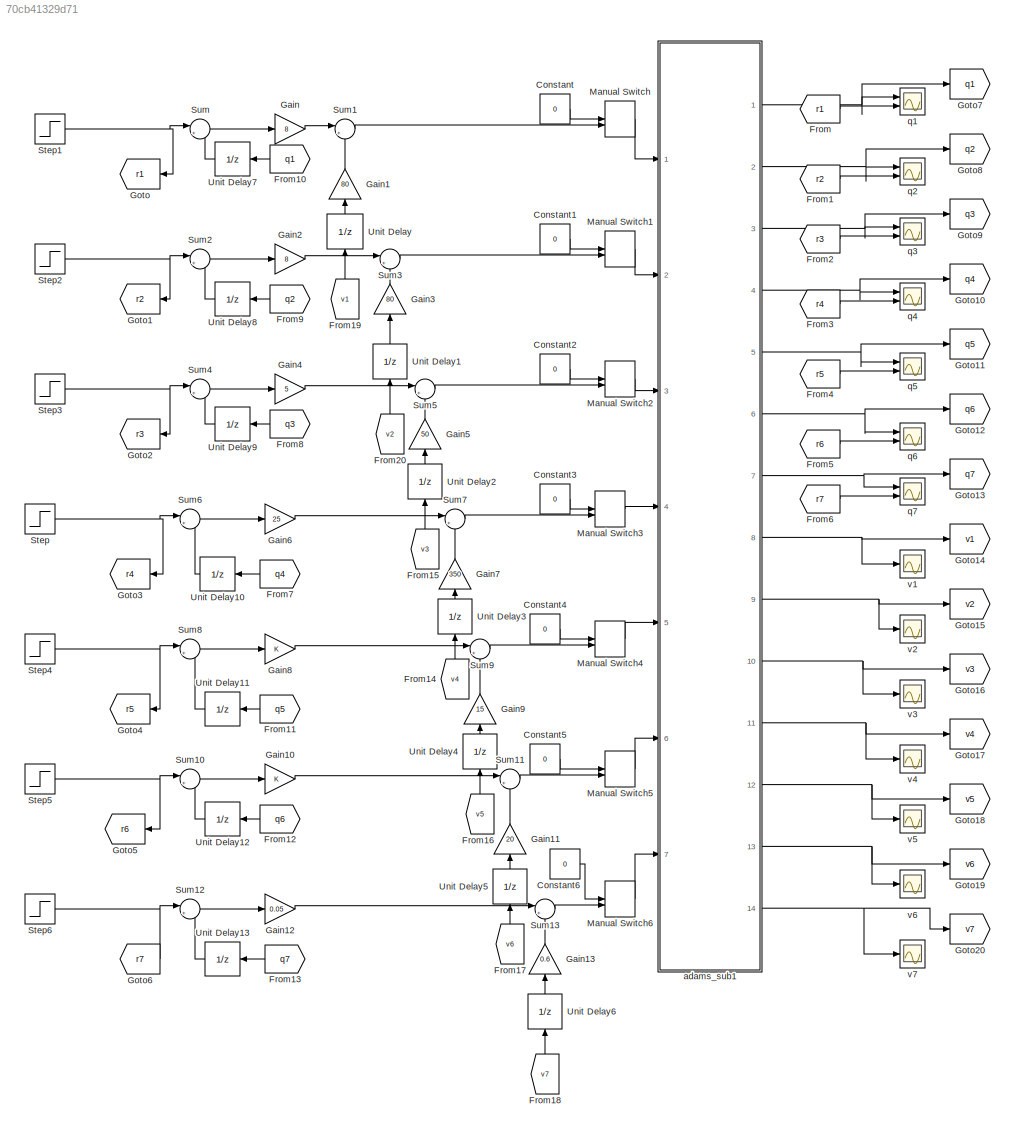
MODEL slx_70cb41329d71
KIND model
CONFIG AbsTol = 1e-6
CONFIG EnableMultiTasking = off
CONFIG FixedStep = auto
CONFIG MaxStep = auto
CONFIG MinStep = auto
CONFIG RelTol = 1e-3
CONFIG SampleTimeConstraint = Unconstrained
CONFIG Solver = ode45
CONFIG SolverName = ode45
CONFIG StartTime = 0.0
CONFIG StopTime = 5.0
BLOCK [Constant] Constant
  Value = 0
BLOCK [Constant] Constant1
  Value = 0
BLOCK [Constant] Constant2
  Value = 0
BLOCK [Constant] Constant3
  Value = 0
BLOCK [Constant] Constant4
  Value = 0
BLOCK [Constant] Constant5
  Value = 0
BLOCK [Constant] Constant6
  Value = 0
BLOCK [From] From
  GotoTag = r1
BLOCK [From] From1
  GotoTag = r2
BLOCK [From] From10
  GotoTag = q1
BLOCK [From] From11
  GotoTag = q5
BLOCK [From] From12
  GotoTag = q6
BLOCK [From] From13
  GotoTag = q7
BLOCK [From] From14
  GotoTag = v4
BLOCK [From] From15
  GotoTag = v3
BLOCK [From] From16
  GotoTag = v5
BLOCK [From] From17
  GotoTag = v6
BLOCK [From] From18
  GotoTag = v7
BLOCK [From] From19
  GotoTag = v1
BLOCK [From] From2
  GotoTag = r3
BLOCK [From] From20
  GotoTag = v2
BLOCK [From] From3
  GotoTag = r4
BLOCK [From] From4
  GotoTag = r5
BLOCK [From] From5
  GotoTag = r6
BLOCK [From] From6
  GotoTag = r7
BLOCK [From] From7
  GotoTag = q4
BLOCK [From] From8
  GotoTag = q3
BLOCK [From] From9
  GotoTag = q2
BLOCK [Gain] Gain
  Gain = 8
  OutDataTypeStr = Inherit: Inherit via internal rule
  ParamDataTypeStr = Inherit: Inherit via internal rule
  SaturateOnIntegerOverflow = off
BLOCK [Gain] Gain1
  Gain = 80
  OutDataTypeStr = Inherit: Inherit via internal rule
  ParamDataTypeStr = Inherit: Inherit via internal rule
  SaturateOnIntegerOverflow = off
BLOCK [Gain] Gain10
  OutDataTypeStr = Inherit: Inherit via internal rule
  ParamDataTypeStr = Inherit: Inherit via internal rule
  SaturateOnIntegerOverflow = off
BLOCK [Gain] Gain11
  Gain = 20
  OutDataTypeStr = Inherit: Inherit via internal rule
  ParamDataTypeStr = Inherit: Inherit via internal rule
  SaturateOnIntegerOverflow = off
BLOCK [Gain] Gain12
  Gain = 0.05
  OutDataTypeStr = Inherit: Inherit via internal rule
  ParamDataTypeStr = Inherit: Inherit via internal rule
  SaturateOnIntegerOverflow = off
BLOCK [Gain] Gain13
  Gain = 0.6
  OutDataTypeStr = Inherit: Inherit via internal rule
  ParamDataTypeStr = Inherit: Inherit via internal rule
  SaturateOnIntegerOverflow = off
BLOCK [Gain] Gain2
  Gain = 8
  OutDataTypeStr = Inherit: Inherit via internal rule
  ParamDataTypeStr = Inherit: Inherit via internal rule
  SaturateOnIntegerOverflow = off
BLOCK [Gain] Gain3
  Gain = 80
  OutDataTypeStr = Inherit: Inherit via internal rule
  ParamDataTypeStr = Inherit: Inherit via internal rule
  SaturateOnIntegerOverflow = off
BLOCK [Gain] Gain4
  Gain = 5
  OutDataTypeStr = Inherit: Inherit via internal rule
  ParamDataTypeStr = Inherit: Inherit via internal rule
  SaturateOnIntegerOverflow = off
BLOCK [Gain] Gain5
  Gain = 50
  OutDataTypeStr = Inherit: Inherit via internal rule
  ParamDataTypeStr = Inherit: Inherit via internal rule
  SaturateOnIntegerOverflow = off
BLOCK [Gain] Gain6
  Gain = 25
  OutDataTypeStr = Inherit: Inherit via internal rule
  ParamDataTypeStr = Inherit: Inherit via internal rule
  SaturateOnIntegerOverflow = off
BLOCK [Gain] Gain7
  Gain = 350
  OutDataTypeStr = Inherit: Inherit via internal rule
  ParamDataTypeStr = Inherit: Inherit via internal rule
  SaturateOnIntegerOverflow = off
BLOCK [Gain] Gain8
  OutDataTypeStr = Inherit: Inherit via internal rule
  ParamDataTypeStr = Inherit: Inherit via internal rule
  SaturateOnIntegerOverflow = off
BLOCK [Gain] Gain9
  Gain = 15
  OutDataTypeStr = Inherit: Inherit via internal rule
  ParamDataTypeStr = Inherit: Inherit via internal rule
  SaturateOnIntegerOverflow = off
BLOCK [Goto] Goto
  GotoTag = r1
BLOCK [Goto] Goto1
  GotoTag = r2
BLOCK [Goto] Goto10
  GotoTag = q4
BLOCK [Goto] Goto11
  GotoTag = q5
BLOCK [Goto] Goto12
  GotoTag = q6
BLOCK [Goto] Goto13
  GotoTag = q7
BLOCK [Goto] Goto14
  GotoTag = v1
BLOCK [Goto] Goto15
  GotoTag = v2
BLOCK [Goto] Goto16
  GotoTag = v3
BLOCK [Goto] Goto17
  GotoTag = v4
BLOCK [Goto] Goto18
  GotoTag = v5
BLOCK [Goto] Goto19
  GotoTag = v6
BLOCK [Goto] Goto2
  GotoTag = r3
BLOCK [Goto] Goto20
  GotoTag = v7
BLOCK [Goto] Goto3
  GotoTag = r4
BLOCK [Goto] Goto4
  GotoTag = r5
BLOCK [Goto] Goto5
  GotoTag = r6
BLOCK [Goto] Goto6
  GotoTag = r7
BLOCK [Goto] Goto7
  GotoTag = q1
BLOCK [Goto] Goto8
  GotoTag = q2
BLOCK [Goto] Goto9
  GotoTag = q3
BLOCK [ManualSwitch] Manual Switch
  CurrentSetting = 0
BLOCK [ManualSwitch] Manual Switch1
  CurrentSetting = 0
BLOCK [ManualSwitch] Manual Switch2
  CurrentSetting = 0
BLOCK [ManualSwitch] Manual Switch3
  CurrentSetting = 0
BLOCK [ManualSwitch] Manual Switch4
  CurrentSetting = 0
BLOCK [ManualSwitch] Manual Switch5
  CurrentSetting = 0
BLOCK [ManualSwitch] Manual Switch6
  CurrentSetting = 0
BLOCK [Step] Step
  After = 0.1
  SampleTime = 0
  Time = 0.01
BLOCK [Step] Step1
  After = 0.1
  SampleTime = 0
  Time = 0.01
BLOCK [Step] Step2
  After = 0.1
  SampleTime = 0
  Time = 0.01
BLOCK [Step] Step3
  After = -0.1
  SampleTime = 0
  Time = 0.01
BLOCK [Step] Step4
  After = 0.1
  SampleTime = 0
  Time = 0.01
BLOCK [Step] Step5
  After = -0.1
  SampleTime = 0
  Time = 0.01
BLOCK [Step] Step6
  After = -0.1
  SampleTime = 0
  Time = 0.01
BLOCK [Sum] Sum
  IconShape = round
  InputSameDT = off
  Inputs = |+-
  OutDataTypeStr = Inherit: Inherit via internal rule
  Ports = [2, 1]
  SaturateOnIntegerOverflow = off
BLOCK [Sum] Sum1
  IconShape = round
  InputSameDT = off
  Inputs = |+-
  OutDataTypeStr = Inherit: Inherit via internal rule
  Ports = [2, 1]
  SaturateOnIntegerOverflow = off
BLOCK [Sum] Sum10
  IconShape = round
  InputSameDT = off
  Inputs = |+-
  OutDataTypeStr = Inherit: Inherit via internal rule
  Ports = [2, 1]
  SaturateOnIntegerOverflow = off
BLOCK [Sum] Sum11
  IconShape = round
  InputSameDT = off
  Inputs = |+-
  OutDataTypeStr = Inherit: Inherit via internal rule
  Ports = [2, 1]
  SaturateOnIntegerOverflow = off
BLOCK [Sum] Sum12
  IconShape = round
  InputSameDT = off
  Inputs = |+-
  OutDataTypeStr = Inherit: Inherit via internal rule
  Ports = [2, 1]
  SaturateOnIntegerOverflow = off
BLOCK [Sum] Sum13
  IconShape = round
  InputSameDT = off
  Inputs = |+-
  OutDataTypeStr = Inherit: Inherit via internal rule
  Ports = [2, 1]
  SaturateOnIntegerOverflow = off
BLOCK [Sum] Sum2
  IconShape = round
  InputSameDT = off
  Inputs = |+-
  OutDataTypeStr = Inherit: Inherit via internal rule
  Ports = [2, 1]
  SaturateOnIntegerOverflow = off
BLOCK [Sum] Sum3
  IconShape = round
  InputSameDT = off
  Inputs = |+-
  OutDataTypeStr = Inherit: Inherit via internal rule
  Ports = [2, 1]
  SaturateOnIntegerOverflow = off
BLOCK [Sum] Sum4
  IconShape = round
  InputSameDT = off
  Inputs = |+-
  OutDataTypeStr = Inherit: Inherit via internal rule
  Ports = [2, 1]
  SaturateOnIntegerOverflow = off
BLOCK [Sum] Sum5
  IconShape = round
  InputSameDT = off
  Inputs = |+-
  OutDataTypeStr = Inherit: Inherit via internal rule
  Ports = [2, 1]
  SaturateOnIntegerOverflow = off
BLOCK [Sum] Sum6
  IconShape = round
  InputSameDT = off
  Inputs = |+-
  OutDataTypeStr = Inherit: Inherit via internal rule
  Ports = [2, 1]
  SaturateOnIntegerOverflow = off
BLOCK [Sum] Sum7
  IconShape = round
  InputSameDT = off
  Inputs = |+-
  OutDataTypeStr = Inherit: Inherit via internal rule
  Ports = [2, 1]
  SaturateOnIntegerOverflow = off
BLOCK [Sum] Sum8
  IconShape = round
  InputSameDT = off
  Inputs = |+-
  OutDataTypeStr = Inherit: Inherit via internal rule
  Ports = [2, 1]
  SaturateOnIntegerOverflow = off
BLOCK [Sum] Sum9
  IconShape = round
  InputSameDT = off
  Inputs = |+-
  OutDataTypeStr = Inherit: Inherit via internal rule
  Ports = [2, 1]
  SaturateOnIntegerOverflow = off
BLOCK [UnitDelay] Unit Delay
  InputProcessing = Elements as channels (sample based)
  SampleTime = -1
BLOCK [UnitDelay] Unit Delay1
  InputProcessing = Elements as channels (sample based)
  SampleTime = -1
BLOCK [UnitDelay] Unit Delay10
  InputProcessing = Elements as channels (sample based)
  SampleTime = -1
BLOCK [UnitDelay] Unit Delay11
  InputProcessing = Elements as channels (sample based)
  SampleTime = -1
BLOCK [UnitDelay] Unit Delay12
  InputProcessing = Elements as channels (sample based)
  SampleTime = -1
BLOCK [UnitDelay] Unit Delay13
  InputProcessing = Elements as channels (sample based)
  SampleTime = -1
BLOCK [UnitDelay] Unit Delay2
  InputProcessing = Elements as channels (sample based)
  SampleTime = -1
BLOCK [UnitDelay] Unit Delay3
  InputProcessing = Elements as channels (sample based)
  SampleTime = -1
BLOCK [UnitDelay] Unit Delay4
  InputProcessing = Elements as channels (sample based)
  SampleTime = -1
BLOCK [UnitDelay] Unit Delay5
  InputProcessing = Elements as channels (sample based)
  SampleTime = -1
BLOCK [UnitDelay] Unit Delay6
  InputProcessing = Elements as channels (sample based)
  SampleTime = -1
BLOCK [UnitDelay] Unit Delay7
  InputProcessing = Elements as channels (sample based)
  SampleTime = -1
BLOCK [UnitDelay] Unit Delay8
  InputProcessing = Elements as channels (sample based)
  SampleTime = -1
BLOCK [UnitDelay] Unit Delay9
  InputProcessing = Elements as channels (sample based)
  SampleTime = -1
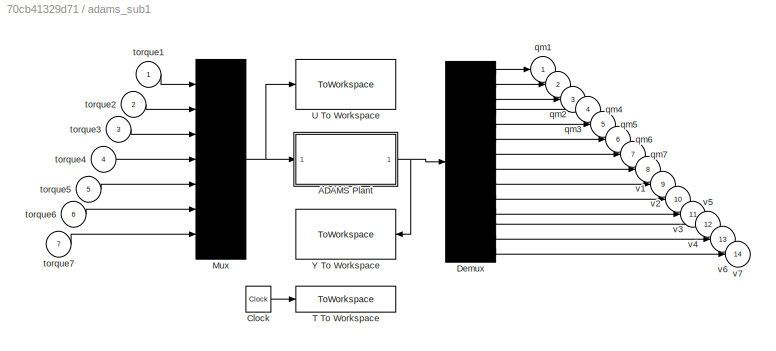
BLOCK [SubSystem] adams_sub1
  Ports = [7, 14]
  RequestExecContextInheritance = off
  ShowPortLabels = none
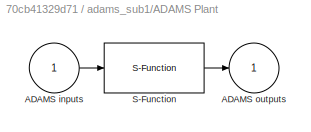
BLOCK [SubSystem] adams_sub1/ADAMS Plant
  InitFcn = clear mex
  LoadFcn = %check based on dialog box setting for when setting by popup menu                                             \nif exist('ADAMS_solver_type')                                                                                 \n  if strcmp(ADAMS_solver_type,'C++')                                                                          \n    set_param(gcb,'exetyp','C++');                                 ...<+4486ch>
  OpenFcn = open_system(gcb,'mask')                                                                                                                          \nif not(exist('set_some_params_states'))                                                                                                          \n                                                                                                            ...<+625ch>
  Ports = [1, 1]
  RequestExecContextInheritance = off
BLOCK [Inport] adams_sub1/ADAMS Plant/ADAMS inputs
  IconDisplay = Port number
BLOCK [Outport] adams_sub1/ADAMS Plant/ADAMS outputs
  IconDisplay = Port number
  InitialOutput = 0
BLOCK [S-Function] adams_sub1/ADAMS Plant/S-Function
  EnableBusSupport = off
  FunctionName = adams_plant
  Parameters = exevie,exesol,stat,outfil,nampre,o_rate,nam_in,namout,dft,modsim,modani,dt_out,inicmd,exetyp,comtyp,ada_host, workdir,pin_interp_order,pout_extrap_order,pin_extrap_order,pout_interp_order,simulink_lead_cosim
  Ports = [1, 1]
  SFcnIsStateOwnerBlock = off
  SFunctionDeploymentMode = off
  StopFcn = clear mex
BLOCK [Clock] adams_sub1/Clock
BLOCK [Demux] adams_sub1/Demux
  Outputs = 14
  Ports = [1, 14]
BLOCK [Mux] adams_sub1/Mux
  Inputs = 7
  Ports = [7, 1]
BLOCK [ToWorkspace] adams_sub1/T To Workspace
  MaxDataPoints = 100000
  Ports = [1]
  VariableName = ADAMS_tout
BLOCK [ToWorkspace] adams_sub1/U To Workspace
  MaxDataPoints = 100000
  Ports = [1]
  VariableName = ADAMS_uout
BLOCK [ToWorkspace] adams_sub1/Y To Workspace
  MaxDataPoints = 100000
  Ports = [1]
  VariableName = ADAMS_yout
BLOCK [Outport] adams_sub1/qm1
  IconDisplay = Port number
BLOCK [Outport] adams_sub1/qm2
  IconDisplay = Port number
  Port = 2
BLOCK [Outport] adams_sub1/qm3
  IconDisplay = Port number
  Port = 3
BLOCK [Outport] adams_sub1/qm4
  IconDisplay = Port number
  Port = 4
BLOCK [Outport] adams_sub1/qm5
  IconDisplay = Port number
  Port = 5
BLOCK [Outport] adams_sub1/qm6
  IconDisplay = Port number
  Port = 6
BLOCK [Outport] adams_sub1/qm7
  IconDisplay = Port number
  Port = 7
BLOCK [Inport] adams_sub1/torque1
  IconDisplay = Port number
BLOCK [Inport] adams_sub1/torque2
  IconDisplay = Port number
  Port = 2
BLOCK [Inport] adams_sub1/torque3
  IconDisplay = Port number
  Port = 3
BLOCK [Inport] adams_sub1/torque4
  IconDisplay = Port number
  Port = 4
BLOCK [Inport] adams_sub1/torque5
  IconDisplay = Port number
  Port = 5
BLOCK [Inport] adams_sub1/torque6
  IconDisplay = Port number
  Port = 6
BLOCK [Inport] adams_sub1/torque7
  IconDisplay = Port number
  Port = 7
BLOCK [Outport] adams_sub1/v1 
  IconDisplay = Port number
  Port = 8
BLOCK [Outport] adams_sub1/v2 
  IconDisplay = Port number
  Port = 9
BLOCK [Outport] adams_sub1/v3 
  IconDisplay = Port number
  Port = 10
BLOCK [Outport] adams_sub1/v4 
  IconDisplay = Port number
  Port = 11
BLOCK [Outport] adams_sub1/v5 
  IconDisplay = Port number
  Port = 12
BLOCK [Outport] adams_sub1/v6 
  IconDisplay = Port number
  Port = 13
BLOCK [Outport] adams_sub1/v7 
  IconDisplay = Port number
  Port = 14
BLOCK [Scope] q1
  Floating = off
  NumInputPorts = 2
  Ports = [2]
  ScopeSpecificationString = Simulink.scopes.TimeScopeBlockCfg('CurrentConfiguration', extmgr.ConfigurationSet(extmgr.Configuration('Core','General UI',true),extmgr.Configuration('Core','Source UI',true),extmgr.Configuration('Sources','WiredSimulink',true,'DataLoggingVariableName','ScopeData1'),extmgr.Configuration('Visuals','Time Domain',true,'SerializedDisplays',{struct('MinYLimReal','-0.0125','MaxYLimReal','0.1125','YLabel...<+1433ch>
BLOCK [Scope] q2
  Floating = off
  NumInputPorts = 2
  Ports = [2]
  ScopeSpecificationString = Simulink.scopes.TimeScopeBlockCfg('CurrentConfiguration', extmgr.ConfigurationSet(extmgr.Configuration('Core','General UI',true),extmgr.Configuration('Core','Source UI',true),extmgr.Configuration('Sources','WiredSimulink',true),extmgr.Configuration('Visuals','Time Domain',true,'SerializedDisplays',{struct('MinYLimReal','-0.01463','MaxYLimReal','0.13163','YLabelReal','','MinYLimMag','0.00000','MaxY...<+1374ch>
BLOCK [Scope] q3
  Floating = off
  NumInputPorts = 2
  Ports = [2]
  ScopeSpecificationString = Simulink.scopes.TimeScopeBlockCfg('CurrentConfiguration', extmgr.ConfigurationSet(extmgr.Configuration('Core','General UI',true),extmgr.Configuration('Core','Source UI',true),extmgr.Configuration('Sources','WiredSimulink',true,'DataLoggingVariableName','ScopeData2'),extmgr.Configuration('Visuals','Time Domain',true,'SerializedDisplays',{struct('MinYLimReal','-0.13695','MaxYLimReal','0.01522','YLab...<+1440ch>
BLOCK [Scope] q4
  Floating = off
  NumInputPorts = 2
  Ports = [2]
  ScopeSpecificationString = Simulink.scopes.TimeScopeBlockCfg('CurrentConfiguration', extmgr.ConfigurationSet(extmgr.Configuration('Core','General UI',true),extmgr.Configuration('Core','Source UI',true),extmgr.Configuration('Sources','WiredSimulink',true,'DataLoggingVariableName','ScopeData3'),extmgr.Configuration('Visuals','Time Domain',true,'SerializedDisplays',{struct('MinYLimReal','-0.01344','MaxYLimReal','0.12095','YLab...<+1436ch>
BLOCK [Scope] q5
  Floating = off
  NumInputPorts = 2
  Ports = [2]
  ScopeSpecificationString = Simulink.scopes.TimeScopeBlockCfg('CurrentConfiguration', extmgr.ConfigurationSet(extmgr.Configuration('Core','General UI',true),extmgr.Configuration('Core','Source UI',true),extmgr.Configuration('Sources','WiredSimulink',true,'DataLoggingVariableName','ScopeData4'),extmgr.Configuration('Visuals','Time Domain',true,'SerializedDisplays',{struct('MinYLimReal','-0.01658','MaxYLimReal','0.13185','YLab...<+1436ch>
BLOCK [Scope] q6
  Floating = off
  NumInputPorts = 2
  Ports = [2]
  ScopeSpecificationString = Simulink.scopes.TimeScopeBlockCfg('CurrentConfiguration', extmgr.ConfigurationSet(extmgr.Configuration('Core','General UI',true),extmgr.Configuration('Core','Source UI',true),extmgr.Configuration('Sources','WiredSimulink',true,'DataLoggingVariableName','ScopeData5'),extmgr.Configuration('Visuals','Time Domain',true,'SerializedDisplays',{struct('MinYLimReal','-0.1543','MaxYLimReal','0.01714','YLabe...<+1434ch>
BLOCK [Scope] q7
  Floating = off
  NumInputPorts = 2
  Ports = [2]
  ScopeSpecificationString = Simulink.scopes.TimeScopeBlockCfg('CurrentConfiguration', extmgr.ConfigurationSet(extmgr.Configuration('Core','General UI',true),extmgr.Configuration('Core','Source UI',true),extmgr.Configuration('Sources','WiredSimulink',true,'DataLoggingVariableName','ScopeData6'),extmgr.Configuration('Visuals','Time Domain',true,'SerializedDisplays',{struct('MinYLimReal','-0.11845','MaxYLimReal','0.01316','YLab...<+1438ch>
BLOCK [Scope] v1
  Floating = off
  NumInputPorts = 1
  Ports = [1]
  ScopeSpecificationString = Simulink.scopes.TimeScopeBlockCfg('CurrentConfiguration', extmgr.ConfigurationSet(extmgr.Configuration('Core','General UI',true),extmgr.Configuration('Core','Source UI',true),extmgr.Configuration('Sources','WiredSimulink',true,'DataLoggingVariableName','ScopeData7'),extmgr.Configuration('Visuals','Time Domain',true,'SerializedDisplays',{struct('MinYLimReal','-0.00243','MaxYLimReal','0.01607','YLab...<+1403ch>
BLOCK [Scope] v2
  Floating = off
  NumInputPorts = 1
  Ports = [1]
  ScopeSpecificationString = Simulink.scopes.TimeScopeBlockCfg('CurrentConfiguration', extmgr.ConfigurationSet(extmgr.Configuration('Core','General UI',true),extmgr.Configuration('Core','Source UI',true),extmgr.Configuration('Sources','WiredSimulink',true,'DataLoggingVariableName','ScopeData8'),extmgr.Configuration('Visuals','Time Domain',true,'SerializedDisplays',{struct('MinYLimReal','-0.00187','MaxYLimReal','0.01351','YLab...<+1403ch>
BLOCK [Scope] v3
  Floating = off
  NumInputPorts = 1
  Ports = [1]
  ScopeSpecificationString = Simulink.scopes.TimeScopeBlockCfg('CurrentConfiguration', extmgr.ConfigurationSet(extmgr.Configuration('Core','General UI',true),extmgr.Configuration('Core','Source UI',true),extmgr.Configuration('Sources','WiredSimulink',true,'DataLoggingVariableName','ScopeData9'),extmgr.Configuration('Visuals','Time Domain',true,'SerializedDisplays',{struct('MinYLimReal','-0.01675','MaxYLimReal','0.00197','YLab...<+1403ch>
BLOCK [Scope] v4
  Floating = off
  NumInputPorts = 1
  Ports = [1]
  ScopeSpecificationString = Simulink.scopes.TimeScopeBlockCfg('CurrentConfiguration', extmgr.ConfigurationSet(extmgr.Configuration('Core','General UI',true),extmgr.Configuration('Core','Source UI',true),extmgr.Configuration('Sources','WiredSimulink',true,'DataLoggingVariableName','ScopeData10'),extmgr.Configuration('Visuals','Time Domain',true,'SerializedDisplays',{struct('MinYLimReal','-0.00164','MaxYLimReal','0.00677','YLa...<+1405ch>
BLOCK [Scope] v5
  Floating = off
  NumInputPorts = 1
  Ports = [1]
  ScopeSpecificationString = Simulink.scopes.TimeScopeBlockCfg('CurrentConfiguration', extmgr.ConfigurationSet(extmgr.Configuration('Core','General UI',true),extmgr.Configuration('Core','Source UI',true),extmgr.Configuration('Sources','WiredSimulink',true,'DataLoggingVariableName','ScopeData11'),extmgr.Configuration('Visuals','Time Domain',true,'SerializedDisplays',{struct('MinYLimReal','-0.00119','MaxYLimReal','0.00419','YLa...<+1406ch>
BLOCK [Scope] v6
  Floating = off
  NumInputPorts = 1
  Ports = [1]
  ScopeSpecificationString = Simulink.scopes.TimeScopeBlockCfg('CurrentConfiguration', extmgr.ConfigurationSet(extmgr.Configuration('Core','General UI',true),extmgr.Configuration('Core','Source UI',true),extmgr.Configuration('Sources','WiredSimulink',true,'DataLoggingVariableName','ScopeData12'),extmgr.Configuration('Visuals','Time Domain',true,'SerializedDisplays',{struct('MinYLimReal','-0.00776','MaxYLimReal','0.00167','YLa...<+1430ch>
BLOCK [Scope] v7
  Floating = off
  NumInputPorts = 1
  Ports = [1]
  ScopeSpecificationString = Simulink.scopes.TimeScopeBlockCfg('CurrentConfiguration', extmgr.ConfigurationSet(extmgr.Configuration('Core','General UI',true),extmgr.Configuration('Core','Source UI',true),extmgr.Configuration('Sources','WiredSimulink',true,'DataLoggingVariableName','ScopeData13'),extmgr.Configuration('Visuals','Time Domain',true,'SerializedDisplays',{struct('MinYLimReal','-0.0069','MaxYLimReal','0.00166','YLab...<+1402ch>
LINE Constant1:1 -> Manual Switch1:1
LINE Constant2:1 -> Manual Switch2:1
LINE Constant3:1 -> Manual Switch3:1
LINE Constant4:1 -> Manual Switch4:1
LINE Constant5:1 -> Manual Switch5:1
LINE Constant6:1 -> Manual Switch6:1
LINE Constant:1 -> Manual Switch:1
LINE From10:1 -> Unit Delay7:1
LINE From11:1 -> Unit Delay11:1
LINE From12:1 -> Unit Delay12:1
LINE From13:1 -> Unit Delay13:1
LINE From14:1 -> Unit Delay3:1
LINE From15:1 -> Unit Delay2:1
LINE From16:1 -> Unit Delay4:1
LINE From17:1 -> Unit Delay5:1
LINE From18:1 -> Unit Delay6:1
LINE From19:1 -> Unit Delay:1
LINE From1:1 -> q2:2
LINE From20:1 -> Unit Delay1:1
LINE From2:1 -> q3:2
LINE From3:1 -> q4:2
LINE From4:1 -> q5:2
LINE From5:1 -> q6:2
LINE From6:1 -> q7:2
LINE From7:1 -> Unit Delay10:1
LINE From8:1 -> Unit Delay9:1
LINE From9:1 -> Unit Delay8:1
LINE From:1 -> q1:2
LINE Gain10:1 -> Sum11:1
LINE Gain11:1 -> Sum11:2
LINE Gain12:1 -> Sum13:1
LINE Gain13:1 -> Sum13:2
LINE Gain1:1 -> Sum1:2
LINE Gain2:1 -> Sum3:1
LINE Gain3:1 -> Sum3:2
LINE Gain4:1 -> Sum5:1
LINE Gain5:1 -> Sum5:2
LINE Gain6:1 -> Sum7:1
LINE Gain7:1 -> Sum7:2
LINE Gain8:1 -> Sum9:1
LINE Gain9:1 -> Sum9:2
LINE Gain:1 -> Sum1:1
LINE Manual Switch1:1 -> adams_sub1:2
LINE Manual Switch2:1 -> adams_sub1:3
LINE Manual Switch3:1 -> adams_sub1:4
LINE Manual Switch4:1 -> adams_sub1:5
LINE Manual Switch5:1 -> adams_sub1:6
LINE Manual Switch6:1 -> adams_sub1:7
LINE Manual Switch:1 -> adams_sub1:1
NET Step1:1 -> Goto:1, Sum:1
NET Step2:1 -> Goto1:1, Sum2:1
NET Step3:1 -> Goto2:1, Sum4:1
NET Step4:1 -> Goto4:1, Sum8:1
NET Step5:1 -> Goto5:1, Sum10:1
NET Step6:1 -> Goto6:1, Sum12:1
NET Step:1 -> Goto3:1, Sum6:1
LINE Sum10:1 -> Gain10:1
LINE Sum11:1 -> Manual Switch5:2
LINE Sum12:1 -> Gain12:1
LINE Sum13:1 -> Manual Switch6:2
LINE Sum1:1 -> Manual Switch:2
LINE Sum2:1 -> Gain2:1
LINE Sum3:1 -> Manual Switch1:2
LINE Sum4:1 -> Gain4:1
LINE Sum5:1 -> Manual Switch2:2
LINE Sum6:1 -> Gain6:1
LINE Sum7:1 -> Manual Switch3:2
LINE Sum8:1 -> Gain8:1
LINE Sum9:1 -> Manual Switch4:2
LINE Sum:1 -> Gain:1
LINE Unit Delay10:1 -> Sum6:2
LINE Unit Delay11:1 -> Sum8:2
LINE Unit Delay12:1 -> Sum10:2
LINE Unit Delay13:1 -> Sum12:2
LINE Unit Delay1:1 -> Gain3:1
LINE Unit Delay2:1 -> Gain5:1
LINE Unit Delay3:1 -> Gain7:1
LINE Unit Delay4:1 -> Gain9:1
LINE Unit Delay5:1 -> Gain11:1
LINE Unit Delay6:1 -> Gain13:1
LINE Unit Delay7:1 -> Sum:2
LINE Unit Delay8:1 -> Sum2:2
LINE Unit Delay9:1 -> Sum4:2
LINE Unit Delay:1 -> Gain1:1
LINE adams_sub1/ADAMS Plant/ADAMS inputs:1 -> adams_sub1/ADAMS Plant/S-Function:1
LINE adams_sub1/ADAMS Plant/S-Function:1 -> adams_sub1/ADAMS Plant/ADAMS outputs:1
NET adams_sub1/ADAMS Plant:1 -> adams_sub1/Demux:1, adams_sub1/Y To Workspace:1
LINE adams_sub1/Clock:1 -> adams_sub1/T To Workspace:1
LINE adams_sub1/Demux:1 -> adams_sub1/qm1:1
LINE adams_sub1/Demux:10 -> adams_sub1/v3 :1
LINE adams_sub1/Demux:11 -> adams_sub1/v4 :1
LINE adams_sub1/Demux:12 -> adams_sub1/v5 :1
LINE adams_sub1/Demux:13 -> adams_sub1/v6 :1
LINE adams_sub1/Demux:14 -> adams_sub1/v7 :1
LINE adams_sub1/Demux:2 -> adams_sub1/qm2:1
LINE adams_sub1/Demux:3 -> adams_sub1/qm3:1
LINE adams_sub1/Demux:4 -> adams_sub1/qm4:1
LINE adams_sub1/Demux:5 -> adams_sub1/qm5:1
LINE adams_sub1/Demux:6 -> adams_sub1/qm6:1
LINE adams_sub1/Demux:7 -> adams_sub1/qm7:1
LINE adams_sub1/Demux:8 -> adams_sub1/v1 :1
LINE adams_sub1/Demux:9 -> adams_sub1/v2 :1
NET adams_sub1/Mux:1 -> adams_sub1/ADAMS Plant:1, adams_sub1/U To Workspace:1
LINE adams_sub1/torque1:1 -> adams_sub1/Mux:1
LINE adams_sub1/torque2:1 -> adams_sub1/Mux:2
LINE adams_sub1/torque3:1 -> adams_sub1/Mux:3
LINE adams_sub1/torque4:1 -> adams_sub1/Mux:4
LINE adams_sub1/torque5:1 -> adams_sub1/Mux:5
LINE adams_sub1/torque6:1 -> adams_sub1/Mux:6
LINE adams_sub1/torque7:1 -> adams_sub1/Mux:7
NET adams_sub1:1 -> Goto7:1, q1:1
NET adams_sub1:10 -> Goto16:1, v3:1
NET adams_sub1:11 -> Goto17:1, v4:1
NET adams_sub1:12 -> Goto18:1, v5:1
NET adams_sub1:13 -> Goto19:1, v6:1
NET adams_sub1:14 -> Goto20:1, v7:1
NET adams_sub1:2 -> Goto8:1, q2:1
NET adams_sub1:3 -> Goto9:1, q3:1
NET adams_sub1:4 -> Goto10:1, q4:1
NET adams_sub1:5 -> Goto11:1, q5:1
NET adams_sub1:6 -> Goto12:1, q6:1
NET adams_sub1:7 -> Goto13:1, q7:1
NET adams_sub1:8 -> Goto14:1, v1:1
NET adams_sub1:9 -> Goto15:1, v2:1
note: NET lines group one-source signal fan-out (src -> all destinations, sorted); 1:1 wires keep LINE
